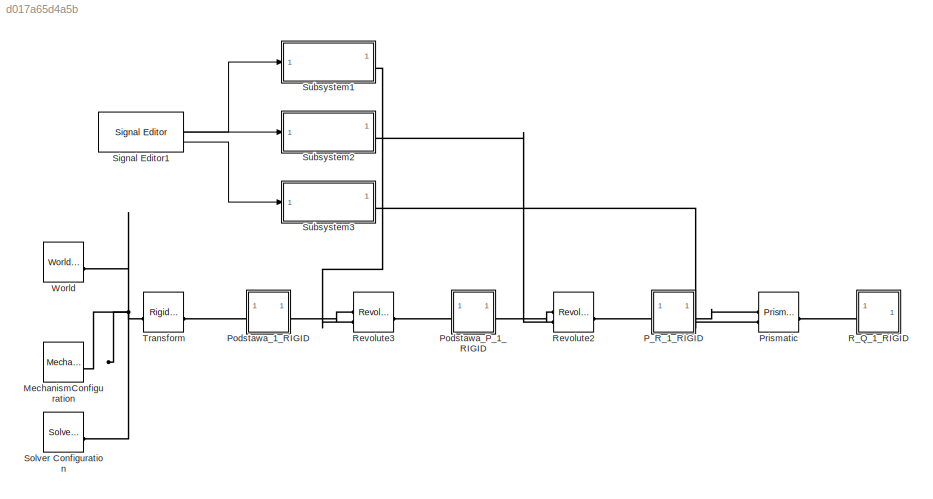
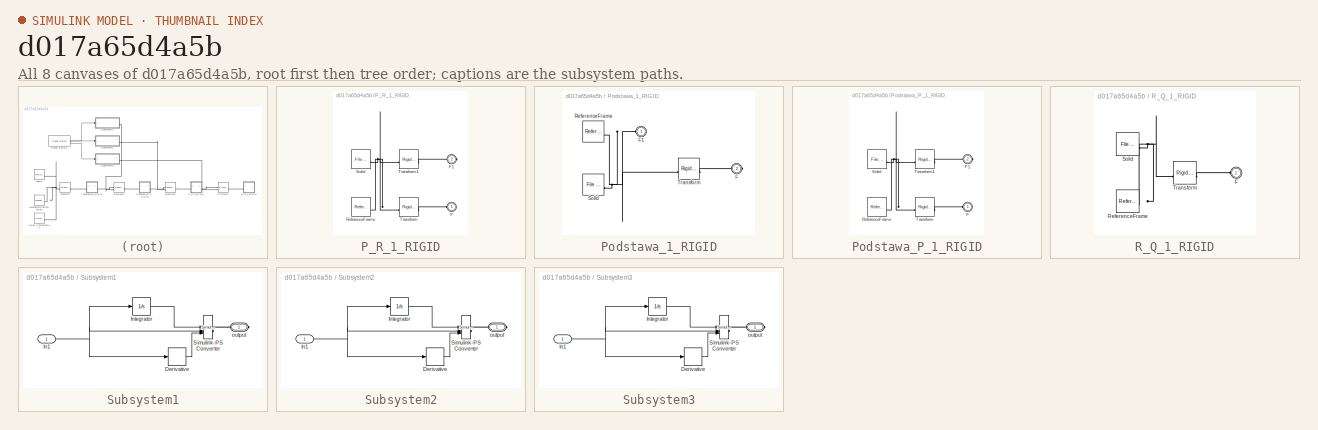
[diagram: thumbnail index - all 8 canvases of the model, root first then tree order]
MODEL slx_d017a65d4a5b
KIND model
CONFIG AbsTol = auto
CONFIG EnableMultiTasking = off
CONFIG FixedStep = auto
CONFIG MaxStep = auto
CONFIG MinStep = auto
CONFIG RelTol = 1e-3
CONFIG SampleTimeConstraint = Unconstrained
CONFIG SolverName = VariableStepAuto
CONFIG StartTime = 0.0
CONFIG StopTime = 80
WORKSPACE source: external: MATLAB File  (data not in archive)
BLOCK [Reference] MechanismConfiguration  REF=sm_lib/Utilities/Mechanism
Configuration
  SourceBlock = sm_lib/Utilities/Mechanism\nConfiguration
  SourceType = Mechanism\nConfiguration
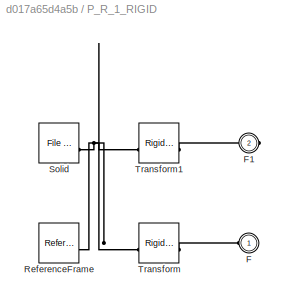
BLOCK [SubSystem] P_R_1_RIGID
BLOCK [PMIOPort] P_R_1_RIGID/F
  Side = Left
BLOCK [PMIOPort] P_R_1_RIGID/F1
  Port = 2
  Side = Right
BLOCK [Reference] P_R_1_RIGID/ReferenceFrame  REF=sm_lib/Frames and
Transforms/Reference
Frame
  SourceBlock = sm_lib/Frames and\nTransforms/Reference\nFrame
  SourceType = Reference\nFrame
BLOCK [Reference] P_R_1_RIGID/Solid  REF=sm_lib/Body Elements/File Solid
  SourceBlock = sm_lib/Body Elements/File Solid
  SourceType = File Solid
BLOCK [Reference] P_R_1_RIGID/Transform  REF=sm_lib/Frames and
Transforms/Rigid
Transform
  SourceBlock = sm_lib/Frames and\nTransforms/Rigid\nTransform
  SourceType = Rigid\nTransform
BLOCK [Reference] P_R_1_RIGID/Transform1  REF=sm_lib/Frames and
Transforms/Rigid
Transform
  SourceBlock = sm_lib/Frames and\nTransforms/Rigid\nTransform
  SourceType = Rigid\nTransform
BLOCK [SubSystem] Podstawa_1_RIGID
BLOCK [PMIOPort] Podstawa_1_RIGID/F
  Port = 2
  Side = Right
BLOCK [PMIOPort] Podstawa_1_RIGID/F1
  Side = Left
BLOCK [Reference] Podstawa_1_RIGID/ReferenceFrame  REF=sm_lib/Frames and
Transforms/Reference
Frame
  SourceBlock = sm_lib/Frames and\nTransforms/Reference\nFrame
  SourceType = Reference\nFrame
BLOCK [Reference] Podstawa_1_RIGID/Solid  REF=sm_lib/Body Elements/File Solid
  SourceBlock = sm_lib/Body Elements/File Solid
  SourceType = File Solid
BLOCK [Reference] Podstawa_1_RIGID/Transform  REF=sm_lib/Frames and
Transforms/Rigid
Transform
  SourceBlock = sm_lib/Frames and\nTransforms/Rigid\nTransform
  SourceType = Rigid\nTransform
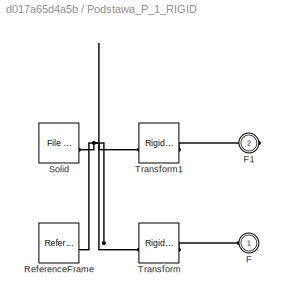
BLOCK [SubSystem] Podstawa_P_1_RIGID
BLOCK [PMIOPort] Podstawa_P_1_RIGID/F
  Side = Left
BLOCK [PMIOPort] Podstawa_P_1_RIGID/F1
  Port = 2
  Side = Right
BLOCK [Reference] Podstawa_P_1_RIGID/ReferenceFrame  REF=sm_lib/Frames and
Transforms/Reference
Frame
  SourceBlock = sm_lib/Frames and\nTransforms/Reference\nFrame
  SourceType = Reference\nFrame
BLOCK [Reference] Podstawa_P_1_RIGID/Solid  REF=sm_lib/Body Elements/File Solid
  SourceBlock = sm_lib/Body Elements/File Solid
  SourceType = File Solid
BLOCK [Reference] Podstawa_P_1_RIGID/Transform  REF=sm_lib/Frames and
Transforms/Rigid
Transform
  SourceBlock = sm_lib/Frames and\nTransforms/Rigid\nTransform
  SourceType = Rigid\nTransform
BLOCK [Reference] Podstawa_P_1_RIGID/Transform1  REF=sm_lib/Frames and
Transforms/Rigid
Transform
  SourceBlock = sm_lib/Frames and\nTransforms/Rigid\nTransform
  SourceType = Rigid\nTransform
BLOCK [Reference] Prismatic  REF=sm_lib/Joints/Prismatic
Joint
  SourceBlock = sm_lib/Joints/Prismatic\nJoint
  SourceType = Prismatic\nJoint
BLOCK [SubSystem] R_Q_1_RIGID
BLOCK [PMIOPort] R_Q_1_RIGID/F
  Side = Left
BLOCK [Reference] R_Q_1_RIGID/ReferenceFrame  REF=sm_lib/Frames and
Transforms/Reference
Frame
  SourceBlock = sm_lib/Frames and\nTransforms/Reference\nFrame
  SourceType = Reference\nFrame
BLOCK [Reference] R_Q_1_RIGID/Solid  REF=sm_lib/Body Elements/File Solid
  SourceBlock = sm_lib/Body Elements/File Solid
  SourceType = File Solid
BLOCK [Reference] R_Q_1_RIGID/Transform  REF=sm_lib/Frames and
Transforms/Rigid
Transform
  SourceBlock = sm_lib/Frames and\nTransforms/Rigid\nTransform
  SourceType = Rigid\nTransform
BLOCK [Reference] Revolute2  REF=sm_lib/Joints/Revolute Joint
  SourceBlock = sm_lib/Joints/Revolute Joint
  SourceType = Revolute Joint
BLOCK [Reference] Revolute3  REF=sm_lib/Joints/Revolute Joint
  SourceBlock = sm_lib/Joints/Revolute Joint
  SourceType = Revolute Joint
BLOCK [Reference] Signal Editor1  REF=SignalEditorBlockLib/Signal Editor
  LibrarySourceBlock = simulink/Sources/Signal Editor
  SourceBlock = SignalEditorBlockLib/Signal Editor
  SourceType = SignalEditor
  UserDataPersistent = on
BLOCK [Reference] Solver Configuration  REF=nesl_utility/Solver
Configuration
  SourceBlock = nesl_utility/Solver\nConfiguration
  SourceType = Solver\nConfiguration
BLOCK [SubSystem] Subsystem1
BLOCK [Derivative] Subsystem1/Derivative
BLOCK [Inport] Subsystem1/In1
BLOCK [Integrator] Subsystem1/Integrator
BLOCK [Reference] Subsystem1/Simulink-PS Converter  REF=nesl_utility/Simulink-PS
Converter
  SourceBlock = nesl_utility/Simulink-PS\nConverter
  SourceType = Simulink-PS\nConverter
BLOCK [PMIOPort] Subsystem1/output
  Side = Right
BLOCK [SubSystem] Subsystem2
BLOCK [Derivative] Subsystem2/Derivative
BLOCK [Inport] Subsystem2/In1
BLOCK [Integrator] Subsystem2/Integrator
BLOCK [Reference] Subsystem2/Simulink-PS Converter  REF=nesl_utility/Simulink-PS
Converter
  SourceBlock = nesl_utility/Simulink-PS\nConverter
  SourceType = Simulink-PS\nConverter
BLOCK [PMIOPort] Subsystem2/output
  Side = Right
BLOCK [SubSystem] Subsystem3
BLOCK [Derivative] Subsystem3/Derivative
BLOCK [Inport] Subsystem3/In1
BLOCK [Integrator] Subsystem3/Integrator
BLOCK [Reference] Subsystem3/Simulink-PS Converter  REF=nesl_utility/Simulink-PS
Converter
  SourceBlock = nesl_utility/Simulink-PS\nConverter
  SourceType = Simulink-PS\nConverter
BLOCK [PMIOPort] Subsystem3/output
  Side = Right
BLOCK [Reference] Transform  REF=sm_lib/Frames and
Transforms/Rigid
Transform
  SourceBlock = sm_lib/Frames and\nTransforms/Rigid\nTransform
  SourceType = Rigid\nTransform
BLOCK [Reference] World  REF=sm_lib/Frames and
Transforms/World Frame
  SourceBlock = sm_lib/Frames and\nTransforms/World Frame
  SourceType = World Frame
LINE Signal Editor1:1 -> Subsystem1:1
LINE Signal Editor1:2 -> Subsystem2:1
LINE Signal Editor1:3 -> Subsystem3:1
LINE Subsystem1/Derivative:1 -> Subsystem1/Simulink-PS Converter:3
NET Subsystem1/In1:1 -> Subsystem1/Derivative:1, Subsystem1/Integrator:1, Subsystem1/Simulink-PS Converter:2
LINE Subsystem1/Integrator:1 -> Subsystem1/Simulink-PS Converter:1
LINE Subsystem2/Derivative:1 -> Subsystem2/Simulink-PS Converter:3
NET Subsystem2/In1:1 -> Subsystem2/Derivative:1, Subsystem2/Integrator:1, Subsystem2/Simulink-PS Converter:2
LINE Subsystem2/Integrator:1 -> Subsystem2/Simulink-PS Converter:1
LINE Subsystem3/Derivative:1 -> Subsystem3/Simulink-PS Converter:3
NET Subsystem3/In1:1 -> Subsystem3/Derivative:1, Subsystem3/Integrator:1, Subsystem3/Simulink-PS Converter:2
LINE Subsystem3/Integrator:1 -> Subsystem3/Simulink-PS Converter:1
PNET net1: MechanismConfiguration:RConn1 -- Solver Configuration:RConn1 -- Transform:LConn1 -- World:RConn1
PLINE P_R_1_RIGID/F1:RConn1 -- P_R_1_RIGID/Transform1:RConn1
PLINE P_R_1_RIGID/F:RConn1 -- P_R_1_RIGID/Transform:RConn1
PNET net2: P_R_1_RIGID/ReferenceFrame:RConn1 -- P_R_1_RIGID/Solid:RConn1 -- P_R_1_RIGID/Transform1:LConn1 -- P_R_1_RIGID/Transform:LConn1
PLINE P_R_1_RIGID:LConn1 -- Revolute2:RConn1
PLINE P_R_1_RIGID:RConn1 -- Prismatic:LConn1
PNET net3: Podstawa_1_RIGID/F1:RConn1 -- Podstawa_1_RIGID/ReferenceFrame:RConn1 -- Podstawa_1_RIGID/Solid:RConn1 -- Podstawa_1_RIGID/Transform:LConn1
PLINE Podstawa_1_RIGID/F:RConn1 -- Podstawa_1_RIGID/Transform:RConn1
PLINE Podstawa_1_RIGID:LConn1 -- Transform:RConn1
PLINE Podstawa_1_RIGID:RConn1 -- Revolute3:LConn1
PLINE Podstawa_P_1_RIGID/F1:RConn1 -- Podstawa_P_1_RIGID/Transform1:RConn1
PLINE Podstawa_P_1_RIGID/F:RConn1 -- Podstawa_P_1_RIGID/Transform:RConn1
PNET net4: Podstawa_P_1_RIGID/ReferenceFrame:RConn1 -- Podstawa_P_1_RIGID/Solid:RConn1 -- Podstawa_P_1_RIGID/Transform1:LConn1 -- Podstawa_P_1_RIGID/Transform:LConn1
PLINE Podstawa_P_1_RIGID:LConn1 -- Revolute3:RConn1
PLINE Podstawa_P_1_RIGID:RConn1 -- Revolute2:LConn1
PLINE Prismatic:LConn2 -- Subsystem3:RConn1
PLINE Prismatic:RConn1 -- R_Q_1_RIGID:LConn1
PLINE R_Q_1_RIGID/F:RConn1 -- R_Q_1_RIGID/Transform:RConn1
PNET net5: R_Q_1_RIGID/ReferenceFrame:RConn1 -- R_Q_1_RIGID/Solid:RConn1 -- R_Q_1_RIGID/Transform:LConn1
PLINE Revolute2:LConn2 -- Subsystem2:RConn1
PLINE Revolute3:LConn2 -- Subsystem1:RConn1
PLINE Subsystem1/Simulink-PS Converter:RConn1 -- Subsystem1/output:RConn1
PLINE Subsystem2/Simulink-PS Converter:RConn1 -- Subsystem2/output:RConn1
PLINE Subsystem3/Simulink-PS Converter:RConn1 -- Subsystem3/output:RConn1
note: NET lines group one-source signal fan-out (src -> all destinations, sorted); 1:1 wires keep LINE; PNET lines group multi-terminal physical nets as a canonical sorted terminal list (undirected conserving connections); 2-terminal nets keep the pairwise PLINE form
